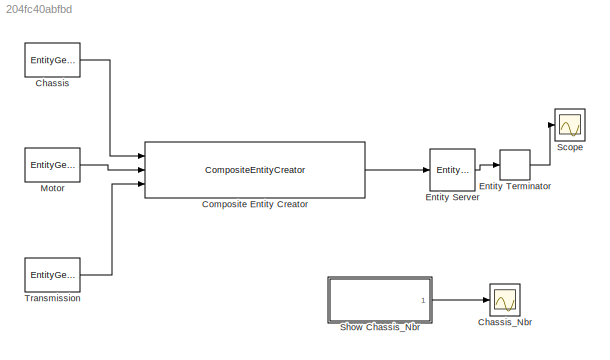
MODEL slx_204fc40abfbd
KIND model
CONFIG AbsTol = auto
CONFIG FixedStep = auto
CONFIG MaxStep = auto
CONFIG MinStep = auto
CONFIG RelTol = 1e-3
CONFIG SampleTimeConstraint = Unconstrained
CONFIG Solver = VariableStepDiscrete
CONFIG SolverMode = Auto
CONFIG SolverName = VariableStepDiscrete
CONFIG StartTime = 0.0
CONFIG StopTime = 10.0
BLOCK [EntityGenerator] Chassis
  AttributeName = Chassis_Nbr
  EntityType = Structured
  EntityTypeName = Chassis
  OutputPortMap = o3
  OutputPortMessageModes = m
  Ports = [0, 1]
BLOCK [Scope] Chassis_Nbr
  Ports = [1]
  ScopeSpecificationString = Simulink.scopes.TimeScopeBlockCfg('CurrentConfiguration', extmgr.ConfigurationSet(extmgr.Configuration('Core','General UI',true),extmgr.Configuration('Core','Source UI',true),extmgr.Configuration('Sources','WiredSimulink',true,'DataLoggingVariableName','ScopeData1'),extmgr.Configuration('Visuals','Time Domain',true,'SerializedDisplays',{struct('MinYLimReal','-2.75','MaxYLimReal','134.75','YLabelRe...<+1485ch>
BLOCK [CompositeEntityCreator] Composite Entity Creator
  EntityTypeName = Combined
  InputEntityName = Chassis|Motor|Transmission
  InputPortMap = u0,u1,u2
  InputPortMessageModes = m,m,m
  NumberInputPorts = 3
  OutputPortMap = o0
  OutputPortMessageModes = m
  Ports = [3, 1]
BLOCK [EntityServer] Entity Server
  Capacity = 1
  EntryAction = entity.Chassis.Chassis_Nbr = entity.Motor.Motor_Nbr + 10 * entity.Transmission.Transmission_Nbr;\nf(entity.Chassis.Chassis_Nbr);
  InputPortMap = u2
  InputPortMessageModes = m
  OutputPortMap = o9
  OutputPortMessageModes = m
  Ports = [1, 1]
BLOCK [EntityTerminator] Entity Terminator
  InputPortMap = u0
  InputPortMessageModes = m
  NumberEntitiesArrived = on
  OutputPortMap = o0
  Ports = [1, 1]
BLOCK [EntityGenerator] Motor
  AttributeName = Motor_Nbr
  EntityType = Structured
  EntityTypeName = Motor
  GenerateAction = persistent Motor_count\nif (isempty(Motor_count))\n    Motor_count = 0;\nend\nMotor_count = Motor_count + 1;\nentity.Motor_Nbr = Motor_count;
  OutputPortMap = o3
  OutputPortMessageModes = m
  Period = 0.3
  Ports = [0, 1]
BLOCK [Scope] Scope
  Ports = [1]
  ScopeSpecificationString = C++SS(StrPVP('SaveName','ScopeData'),StrPVP('LimitDataPoints','on'),StrPVP('DataFormat','Array'),StrPVP('Decimation','1'),StrPVP('BlockParamSampleInput','off'))
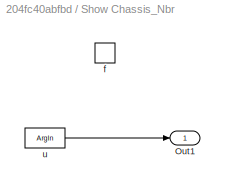
BLOCK [SubSystem] Show Chassis_Nbr
  Ports = [0, 1, 0, 1]
  RequestExecContextInheritance = off
  TreatAsAtomicUnit = on
  Variant = off
BLOCK [Outport] Show Chassis_Nbr/Out1
  IconDisplay = Port number
BLOCK [TriggerPort] Show Chassis_Nbr/f
  FunctionName = f
  IsSimulinkFunction = on
  Ports = []
  StatesWhenEnabling = held
  TriggerType = function-call
  VariantControl = Variant
BLOCK [ArgIn] Show Chassis_Nbr/u
  ArgumentName = u
  DisableCoverage = on
BLOCK [EntityGenerator] Transmission
  AttributeName = Transmission_Nbr
  EntityType = Structured
  EntityTypeName = Transmission
  GenerateAction = persistent Transmission_count\nif (isempty(Transmission_count))\n    Transmission_count = 0;\nend\nTransmission_count = Transmission_count + 1;\nentity.Transmission_Nbr = Transmission_count;
  OutputPortMap = o3
  OutputPortMessageModes = m
  Period = 0.5
  Ports = [0, 1]
LINE Chassis:1 -> Composite Entity Creator:1
LINE Composite Entity Creator:1 -> Entity Server:1
LINE Entity Server:1 -> Entity Terminator:1
LINE Entity Terminator:1 -> Scope:1
LINE Motor:1 -> Composite Entity Creator:2
LINE Show Chassis_Nbr/u:1 -> Show Chassis_Nbr/Out1:1
LINE Show Chassis_Nbr:1 -> Chassis_Nbr:1
LINE Transmission:1 -> Composite Entity Creator:3
